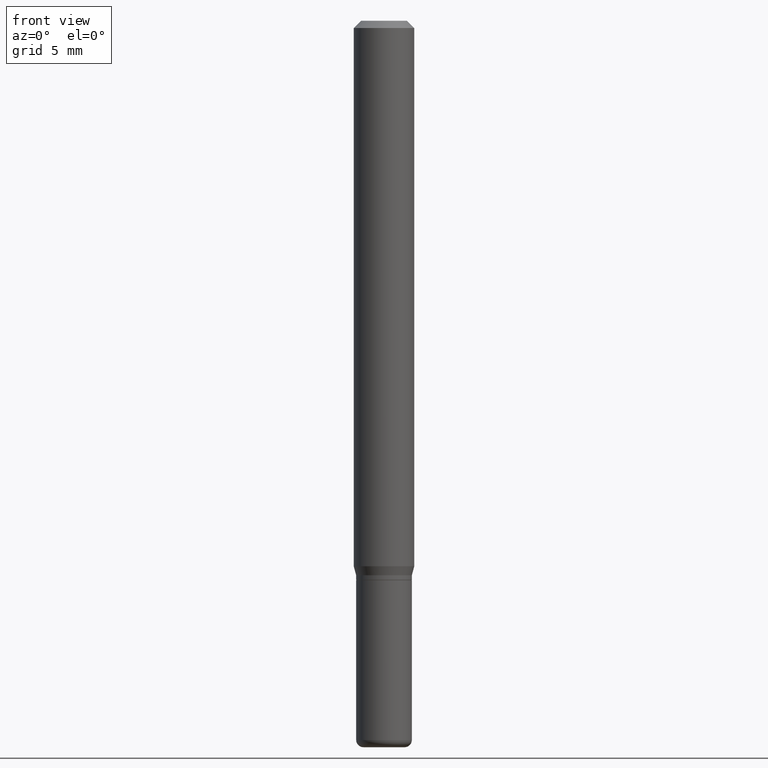
[diagram: clean part render]
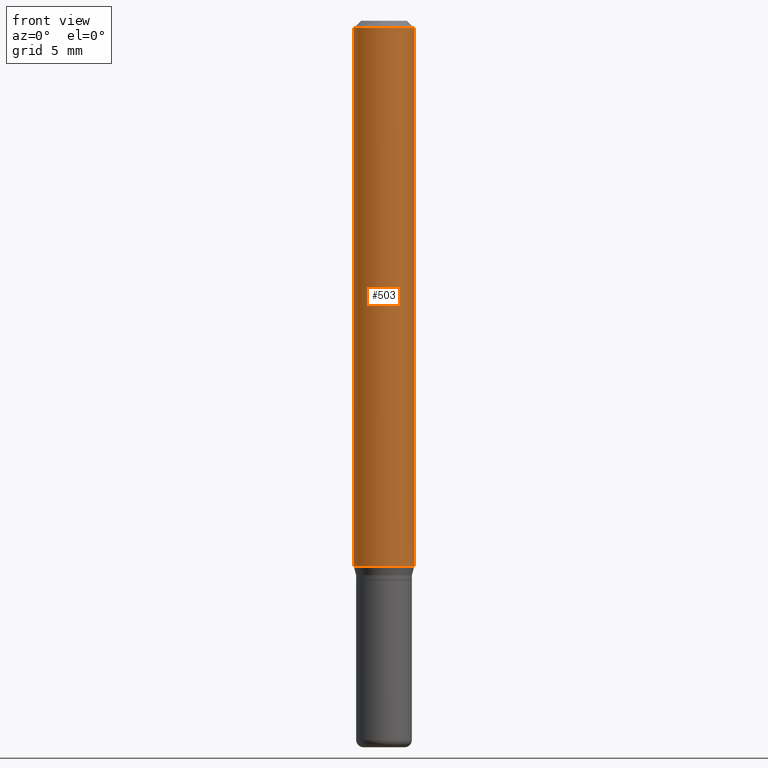
[diagram: same view with one face highlighted and labeled with its STEP entity id]
A machine part, front view. The second image highlights one B-rep face of the part: STEP entity #503.
In plain terms, the highlighted cylindrical surface (edge-blend (fillet) strip) has radius 1.5875 mm, axis along (-0, 0, 1).
Its self-contained STEP definition (entity closure, byte-faithful):
#16 = ORIENTED_EDGE ( 'NONE', *, *, #379, .T. ) ;
#24 = DIRECTION ( 'NONE',  ( -2.445468806185136597E-29, 3.491481338843145583E-15, 1.000000000000000000 ) ) ;
#35 = DIRECTION ( 'NONE',  ( -2.445468806185136877E-29, 3.491481338843145188E-15, 1.000000000000000000 ) ) ;
#41 = LINE ( 'NONE', #518, #54 ) ;
#53 = VERTEX_POINT ( 'NONE', #120 ) ;
#54 = VECTOR ( 'NONE', #336, 39.37007874015748143 ) ;
#85 = EDGE_LOOP ( 'NONE', ( #514, #368, #16, #509 ) ) ;
#92 = DIRECTION ( 'NONE',  ( 1.000000000000000000, -6.982962677686266711E-15, 4.876176775795935793E-29 ) ) ;
#98 = FACE_OUTER_BOUND ( 'NONE', #85, .T. ) ;
#113 = DIRECTION ( 'NONE',  ( 1.000000000000000000, -6.982962677686262766E-15, 0.000000000000000000 ) ) ;
#120 = CARTESIAN_POINT ( 'NONE',  ( -0.06250000000000000000, -1.548394002303358444E-15, -0.01499999999999970281 ) ) ;
#121 = CARTESIAN_POINT ( 'NONE',  ( -0.06250000000000000000, -3.488504994374133608E-15, -1.126339745962155803 ) ) ;
#140 = VECTOR ( 'NONE', #35, 39.37007874015748143 ) ;
#158 = CIRCLE ( 'NONE', #445, 0.06250000000000000000 ) ;
#196 = CIRCLE ( 'NONE', #394, 0.06250000000000000000 ) ;
#206 = CARTESIAN_POINT ( 'NONE',  ( 2.754428713916943180E-29, -3.932594204224195830E-15, -1.126339745962155803 ) ) ;
#259 = CARTESIAN_POINT ( 'NONE',  ( 0.000000000000000000, 0.000000000000000000, 0.000000000000000000 ) ) ;
#281 = CARTESIAN_POINT ( 'NONE',  ( -0.06250000000000000000, 4.440892098500626162E-16, -3.074334431409316114E-30 ) ) ;
#307 = EDGE_CURVE ( 'NONE', #53, #343, #158, .T. ) ;
#324 = LINE ( 'NONE', #281, #140 ) ;
#336 = DIRECTION ( 'NONE',  ( -2.445468806185136877E-29, 3.491481338843145188E-15, 1.000000000000000000 ) ) ;
#342 = DIRECTION ( 'NONE',  ( -2.445468806185136597E-29, 3.491481338843145583E-15, 1.000000000000000000 ) ) ;
#343 = VERTEX_POINT ( 'NONE', #363 ) ;
#358 = DIRECTION ( 'NONE',  ( -2.445468806185136597E-29, 3.491481338843145583E-15, 1.000000000000000000 ) ) ;
#363 = CARTESIAN_POINT ( 'NONE',  ( 0.06250000000000000000, -4.888073874380378612E-16, -0.01499999999999970281 ) ) ;
#365 = VERTEX_POINT ( 'NONE', #121 ) ;
#368 = ORIENTED_EDGE ( 'NONE', *, *, #404, .T. ) ;
#379 = EDGE_CURVE ( 'NONE', #496, #343, #41, .T. ) ;
#394 = AXIS2_PLACEMENT_3D ( 'NONE', #206, #358, #113 ) ;
#395 = AXIS2_PLACEMENT_3D ( 'NONE', #259, #342, #92 ) ;
#404 = EDGE_CURVE ( 'NONE', #365, #496, #196, .T. ) ;
#445 = AXIS2_PLACEMENT_3D ( 'NONE', #466, #24, #473 ) ;
#451 = CARTESIAN_POINT ( 'NONE',  ( 0.06250000000000000000, -4.369029371579587499E-15, -1.126339745962155803 ) ) ;
#452 = EDGE_CURVE ( 'NONE', #365, #53, #324, .T. ) ;
#454 = CYLINDRICAL_SURFACE ( 'NONE', #395, 0.06250000000000000000 ) ;
#466 = CARTESIAN_POINT ( 'NONE',  ( 3.668203209277632395E-31, -5.237222008264614861E-17, -0.01499999999999970281 ) ) ;
#473 = DIRECTION ( 'NONE',  ( 1.000000000000000000, -6.982962677686266711E-15, 0.000000000000000000 ) ) ;
#496 = VERTEX_POINT ( 'NONE', #451 ) ;
#503 = ADVANCED_FACE ( 'NONE', ( #98 ), #454, .T. ) ;
#509 = ORIENTED_EDGE ( 'NONE', *, *, #307, .F. ) ;
#514 = ORIENTED_EDGE ( 'NONE', *, *, #452, .F. ) ;
#518 = CARTESIAN_POINT ( 'NONE',  ( 0.06250000000000000000, -4.364351673553916694E-16, 3.047610484872459871E-30 ) ) ;